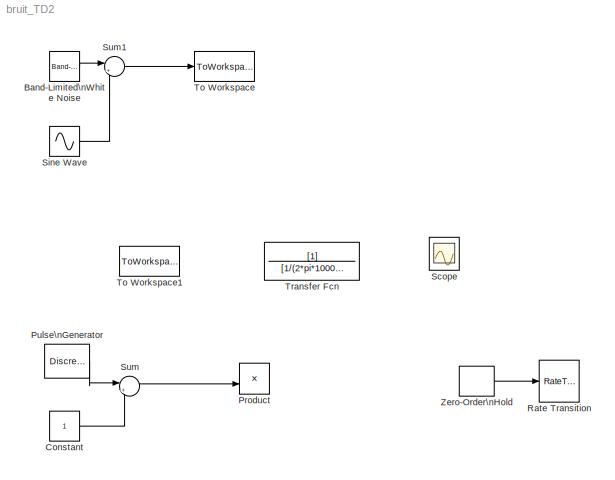
MODEL bruit_TD2
KIND model
BLOCK [Reference] Band-Limited\nWhite Noise  REF=simulink/Sources/Band-Limited\nWhite Noise
  Cov = [0]
  Ports = [0, 1]
  SID = 1
  SourceBlock = simulink/Sources/Band-Limited\nWhite Noise
  SourceType = Band-Limited White Noise.
  Ts = ts
  VectorParams1D = on
  seed = [23341]
BLOCK [Constant] Constant
  SID = 2
BLOCK [Product] Product
  InputSameDT = off
  OutDataTypeStr = Inherit: Inherit via internal rule
  Ports = [2, 1]
  SID = 3
  SampleTime = 0
  SaturateOnIntegerOverflow = off
BLOCK [DiscretePulseGenerator] Pulse\nGenerator
  Amplitude = 2
  Period = 1/20
  Ports = [0, 1]
  PulseType = Time based
  PulseWidth = 50
  SID = 4
BLOCK [RateTransition] Rate Transition
  SID = 5
BLOCK [Scope] Scope
  NumInputPorts = 2
  Ports = [2]
  SID = 6
  ScopeSpecificationString = C++SS(StrPVP('Location','[1, 45, 1017, 715]'),StrPVP('Open','off'),StrPVP('ZoomMode','xonly'),MxPVP('AxesTitles',24,'struct(''axes1'',''%<SignalLabel>'',''axes2'',''%<SignalLabel>'')'),StrPVP('YMin','-1.2e-005~-1.5e-005'),StrPVP('YMax','1.2e-005~1.5e-005'),StrPVP('DataFormat','StructureWithTime'),StrPVP('LimitDataPoints','off'),StrPVP('Decimation','1'),StrPVP('BlockParamSampleInput','off'))
BLOCK [Sin] Sine Wave
  Amplitude = 1e-6
  Frequency = 2*pi*10
  Ports = [0, 1]
  SID = 7
  SampleTime = 0
BLOCK [Sum] Sum
  IconShape = round
  InputSameDT = off
  Inputs = |+-
  OutDataTypeStr = Inherit: Inherit via internal rule
  Ports = [2, 1]
  SID = 8
  SaturateOnIntegerOverflow = off
BLOCK [Sum] Sum1
  IconShape = round
  InputSameDT = off
  Inputs = |+-
  OutDataTypeStr = Inherit: Inherit via internal rule
  Ports = [2, 1]
  SID = 9
  SaturateOnIntegerOverflow = off
BLOCK [ToWorkspace] To Workspace
  MaxDataPoints = inf
  Ports = [1]
  SID = 10
  SampleTime = ts
  VariableName = simout
BLOCK [ToWorkspace] To Workspace1
  MaxDataPoints = inf
  Ports = [1]
  SID = 11
  SampleTime = ts
  VariableName = simout1
BLOCK [TransferFcn] Transfer Fcn
  Denominator = [1/(2*pi*10000) 1]
  SID = 12
BLOCK [ZeroOrderHold] Zero-Order\nHold
  SID = 13
  SampleTime = 1/200
LINE Band-Limited\nWhite Noise:1 -> Sum1:1
LINE Constant:1 -> Sum:2
LINE Pulse\nGenerator:1 -> Sum:1
LINE Sine Wave:1 -> Sum1:2
LINE Sum1:1 -> To Workspace:1
LINE Sum:1 -> Product:2
LINE Zero-Order\nHold:1 -> Rate Transition:1
